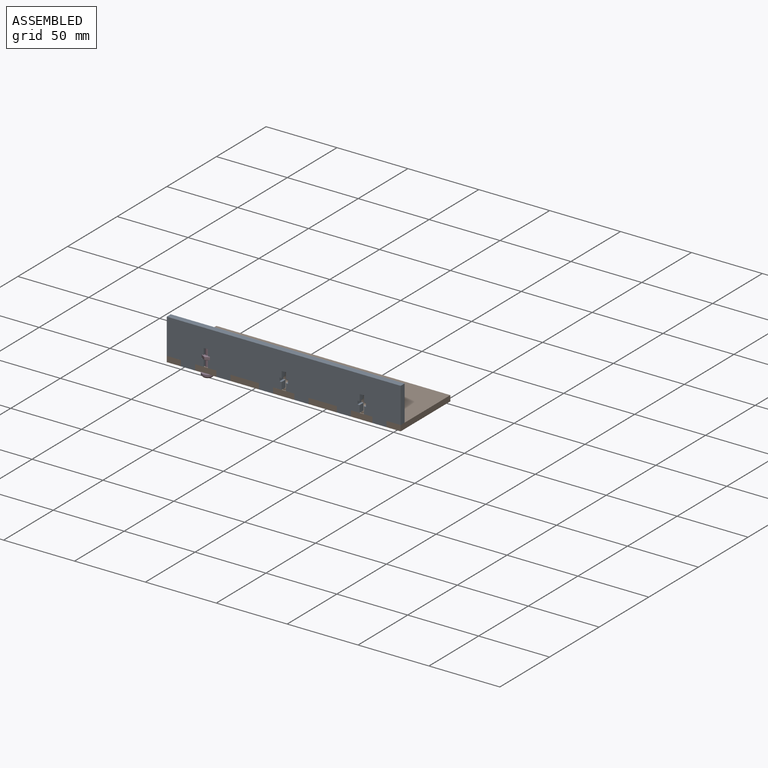
[diagram: assembled view]
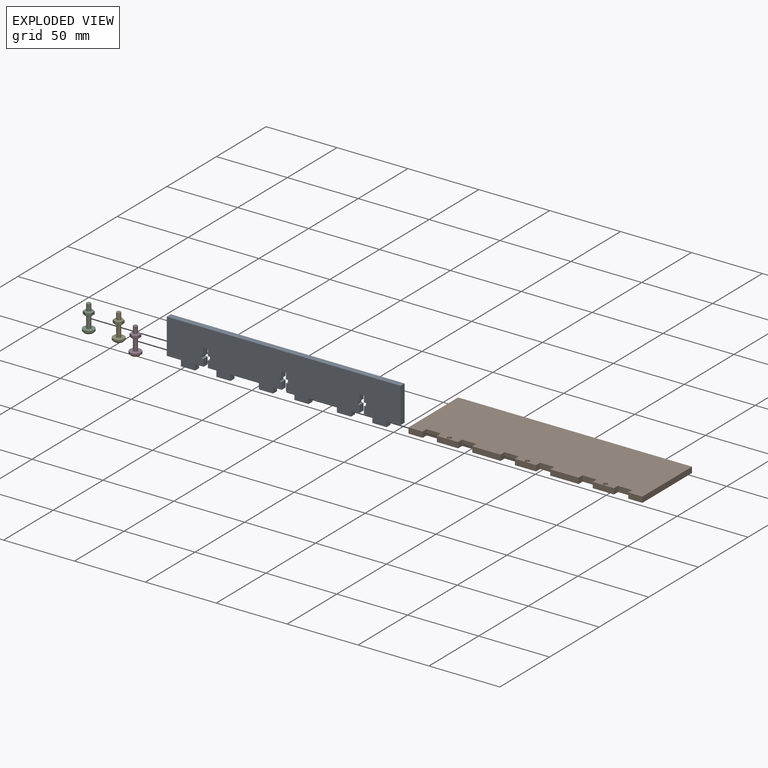
[diagram: exploded view]
GUIDED TOUR — MATED ASSEMBLY (Onshape document 4d6dcd6723f662b2dfa2028a, AutoMate assembly 4d6dcd6723f662b2dfa2028a_2e419da8dc31c41e2eea57a3_882f2dbb3b5270c2fc4bff73_default)

This assembly has 5 components, labeled P0..P4 below (a component is one placed occurrence of a part; the same part can appear more than once), held together by 3 mates. A mate is a constraint between two components; its type names the relative motion it leaves free:
  CYLINDRICAL — leaves both rotation about and translation along the listed axis free,
  FASTENED — locks the two components together rigidly (no relative motion).
Axis/direction vectors are unit vectors and 'through' points are millimeter coordinates, both in the assembly's world frame.

MATES
  1. FASTENED "Fastened 1": P1 <-> P0, direction (-1.000, 0.000, 0.000) through (13.68, -3.23, -2.00) mm
  2. FASTENED "Fastened 2": P3 <-> P0, direction (1.000, 0.000, 0.000) through (24.18, -3.23, 6.25) mm
  3. CYLINDRICAL "Cylindrical 1": P1 <-> P3, axis (0.000, 0.000, -1.000) through (21.18, -3.23, -4.00) mm

ASSEMBLY ORDER
  1. P0 — the base component [order heuristic]
  2. P1 [order heuristic]
  3. P2 [order heuristic]
  4. P3 [order heuristic]
  5. P4 [order heuristic]
Order-tag legend:
  [order heuristic] — this assembly is geometrically interlocked (no collision-free removal order exists), so components are listed in mate-graph order; insertion feasibility is not verified.

Of the 5 components, 3 carry the full construction recipe — the FeatureScript program that regenerates the part's solid from scratch; the rest are supplied as boundary geometry only.
Each toured component is shown spotlighted twice — in the assembled view, then in the exploded view, where a leader line traces a displaced component back to its assembled socket (saturated green if recipe-attached, orange if geometry-only; every other component desaturated gray) — followed by its recipe or geometry summary and the mates that hold it.
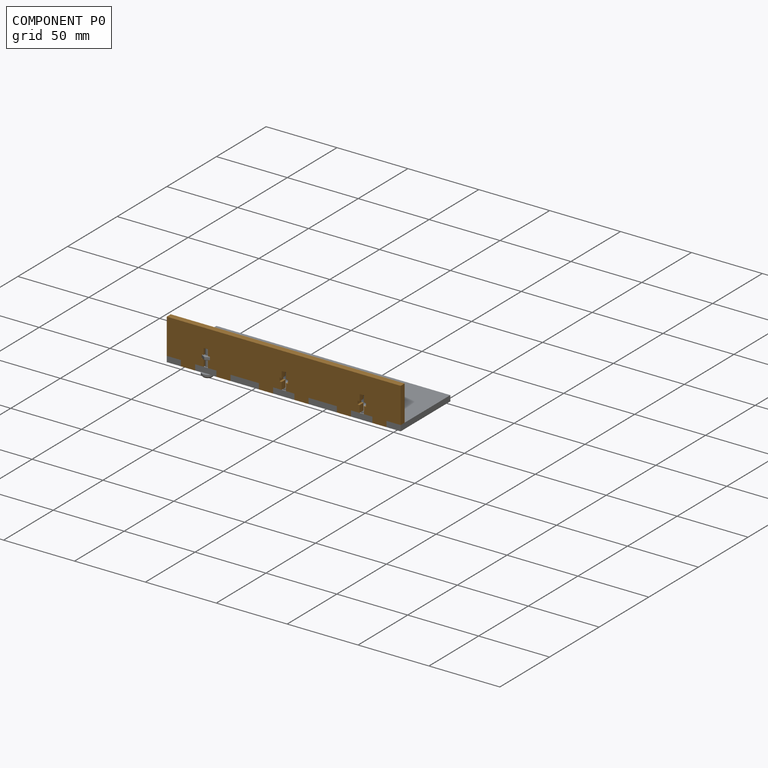
[diagram: component P0 — assembled]
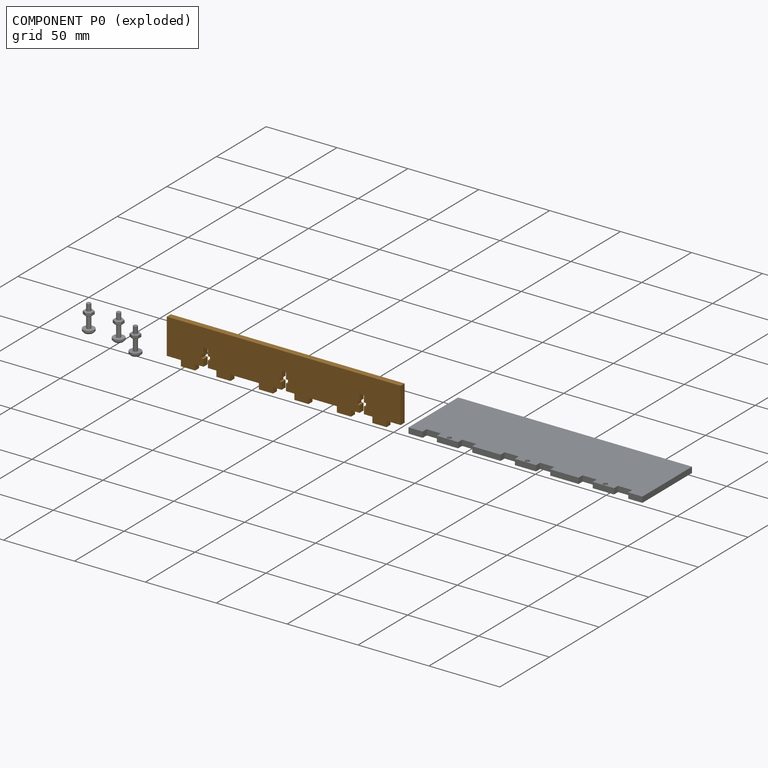
[diagram: component P0 — exploded]
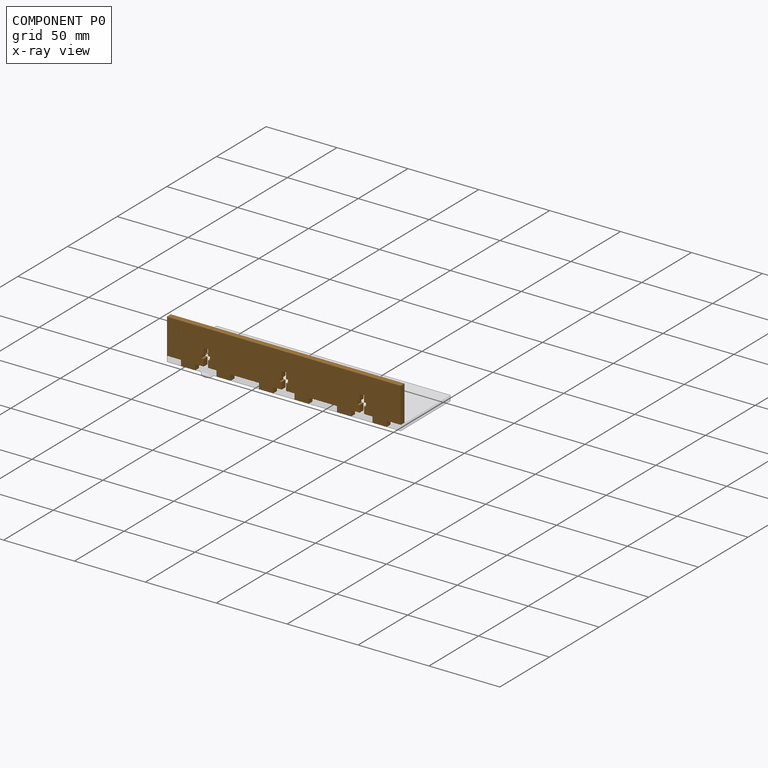
[diagram: component P0 — x-ray view]
COMPONENT P0 — geometry summary (no construction recipe available for this part):
  bounding box: 165.0 x 29.0 x 4.0 mm
  B-rep topology: 1 solid, 70 faces, 408 edges
  volume: 16938 mm^3 (88% of its bounding box)
  symmetry: 2-fold rotationally symmetric about the z axis; mirror-symmetric across its x mid-plane, y mid-plane
Held by: FASTENED mate "Fastened 1" to P1; FASTENED mate "Fastened 2" to P3.
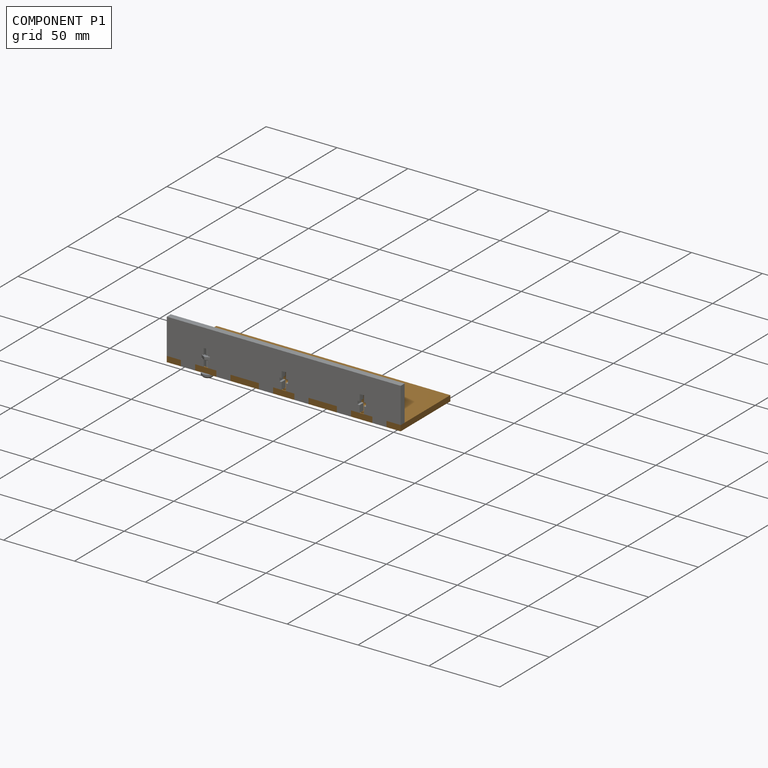
[diagram: component P1 — assembled]
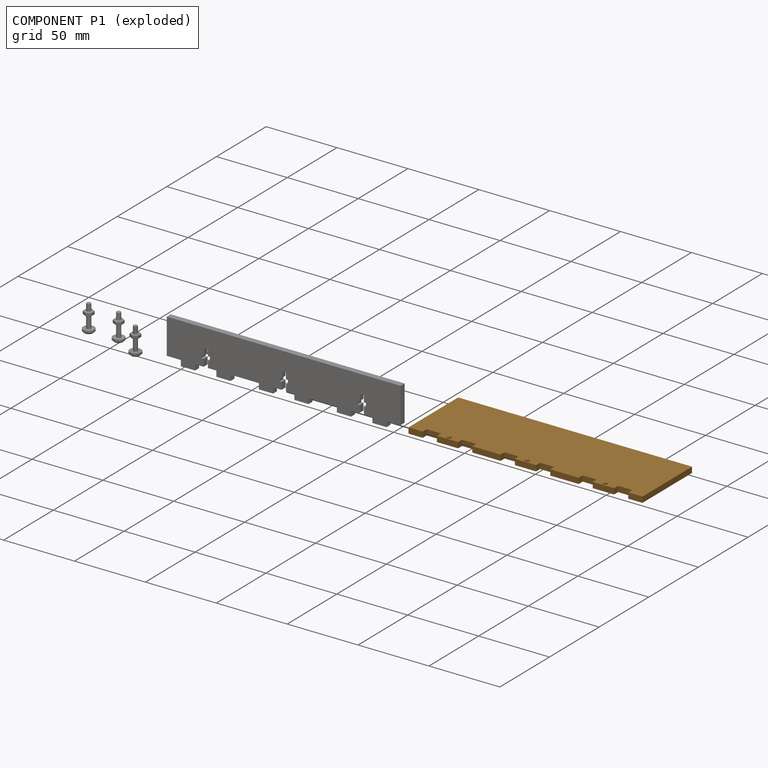
[diagram: component P1 — exploded]
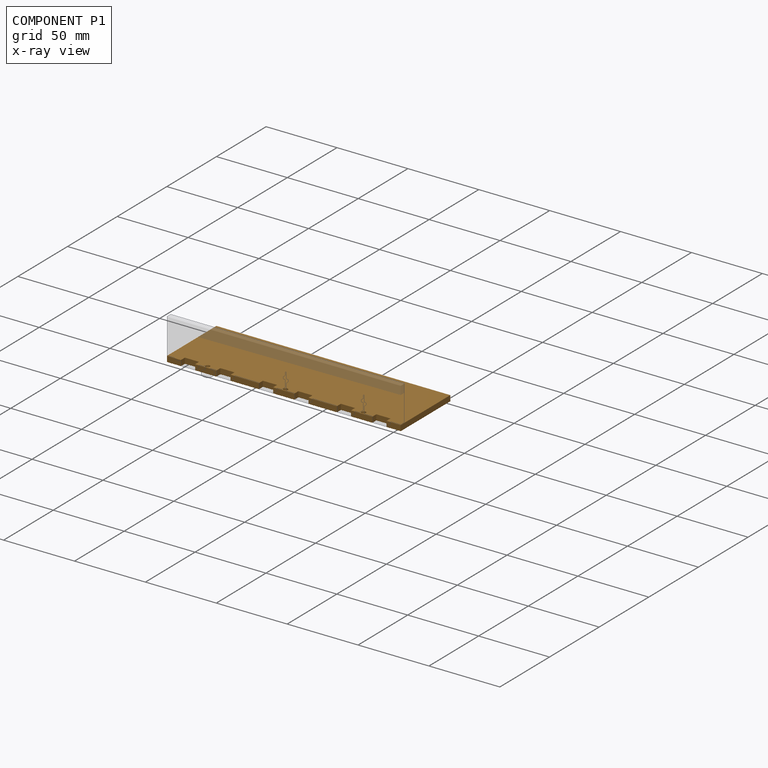
[diagram: component P1 — x-ray view]
COMPONENT P1 — geometry summary (no construction recipe available for this part):
  bounding box: 165.0 x 50.0 x 4.0 mm
  B-rep topology: 1 solid, 33 faces, 186 edges
  volume: 31955 mm^3 (97% of its bounding box)
  symmetry: 2-fold rotationally symmetric about the y axis; mirror-symmetric across its x mid-plane, z mid-plane
Held by: FASTENED mate "Fastened 1" to P0; CYLINDRICAL mate "Cylindrical 1" to P3.
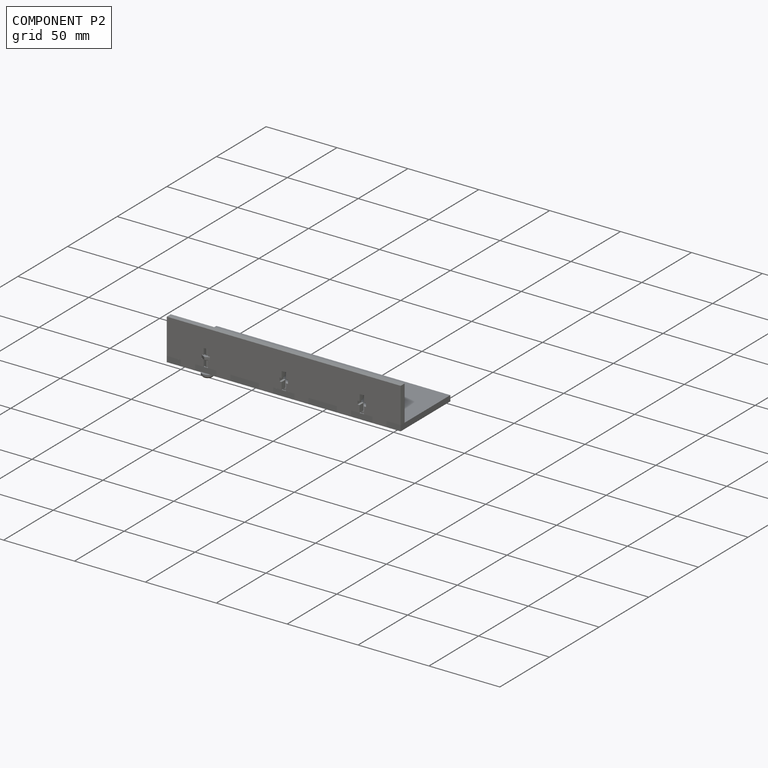
[diagram: component P2 — assembled]
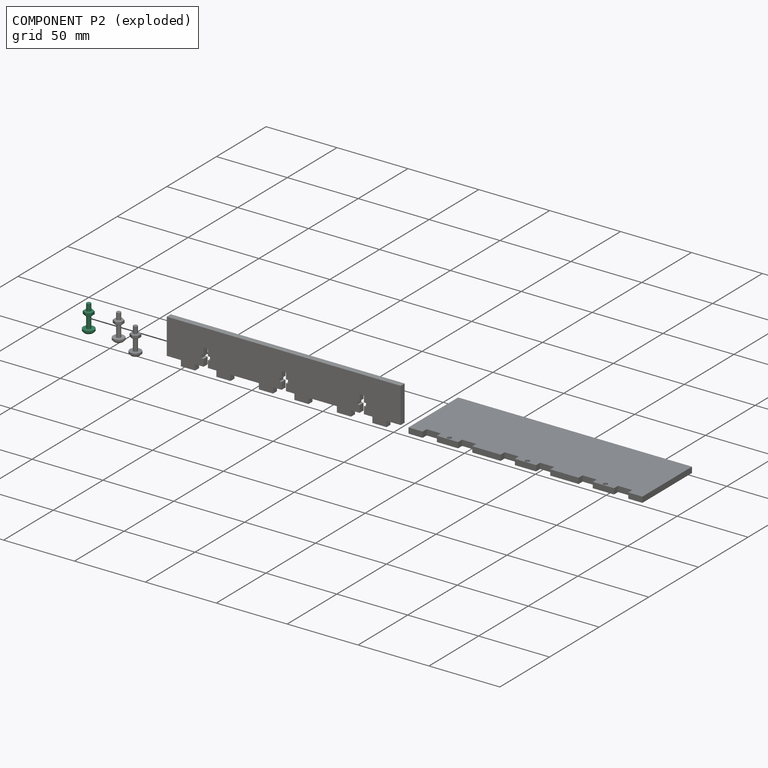
[diagram: component P2 — exploded]
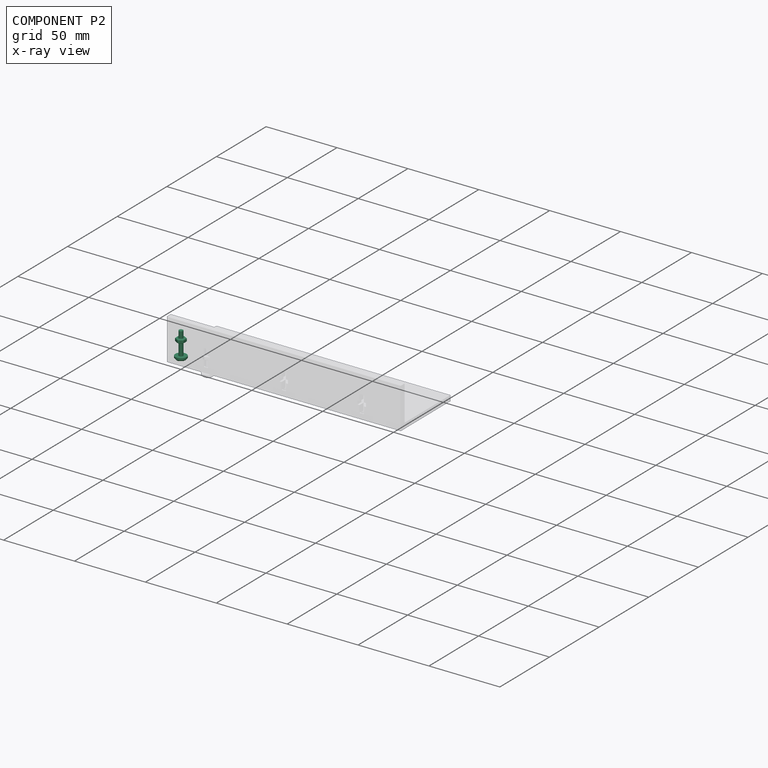
[diagram: component P2 — x-ray view]
COMPONENT P2 — recipe-attached (CADFS 00115429, mesh-verified: the recipe's output STEP matches this component's geometry to below the mesh-comparison resolution (tessellation chordal tolerance ~0.0325 mm)).
Held by: no mates (free).
Construction recipe (FeatureScript — the CAD program that rebuilds this solid; sketch coordinates are in the units given by the * unit suffixes, e.g. mm):

FeatureScript 1511;
import(path : "onshape/std/geometry.fs", version : "1511.0");
import(path : "onshape/std/common.fs", version : "1511.0");
const mm = millimeter;
const VERTEX = EntityType.VERTEX;
const EDGE = EntityType.EDGE;
const FACE = EntityType.FACE;
const BODY = EntityType.BODY;
function v(x, y){return vector(x, y);}
function OD(order){return orderDisambiguation(order);}
function OSD(set){return originalSetDisambiguation(set);}
function TD(topology){return topologyDisambiguation(topology);}
function TDD(query){return trueDependencyDisambiguation(query);}
function sQuery(a, b, c) {return sketchEntityQuery(a, b, c);}

annotation { "Feature Type Name" : "Feature", "Feature Type Description" : "" }
export const myFeature = defineFeature(function(context is Context, id is Id, definition is map)
    precondition{}
    {
        {
            var Q0;
            Q0=qCreatedBy(makeId("Front.planeOp"),FACE);
            var sketch = newSketch(context, id + "F0", { "sketchPlane" : qUnion([Q0])});
            skLineSegment(sketch, "E0", {"start": v(0, 16) * mm, "end": v(1.5, 16) * mm});
            skLineSegment(sketch, "E1", {"start": v(1.5, 16) * mm, "end": v(1.5, 0) * mm});
            skLineSegment(sketch, "E2", {"start": v(1.5, 0) * mm, "end": v(4, 0) * mm});
            skLineSegment(sketch, "E3", {"start": v(4, 0) * mm, "end": v(4, -1.44) * mm});
            skLineSegment(sketch, "E4", {"start": v(4, -1.44) * mm, "end": v(2.94, -2.5) * mm});
            skLineSegment(sketch, "E5", {"start": v(2.94, -2.5) * mm, "end": v(0, -2.5) * mm});
            skLineSegment(sketch, "E6", {"start": v(0, 16) * mm, "end": v(0, -2.5) * mm});
            skSolve(sketch);
        }
        {
            var Q0;
            Q0 = qSketchRegion(id + "F0", true);
            var Q1;
            Q1=sQuery(id+"F0.wireOp",EDGE,"E6");
            revolve(context, id + "F1", {"entities" : qUnion([Q0]), "axis" : qUnion([Q1]), "revolveType" : RevolveType.FULL});
        }
        {
            var Q0;
            Q0=makeQuery(id+"F1.opRevolve","SWEPT_FACE",FACE,{"disambiguationData":[OSD([sQuery(id+"F0.wireOp",EDGE,"E0")])]});
            cPlane(context, id + "F2", {"entities" : qUnion([Q0]), "cplaneType" : CPlaneType.OFFSET, "offset" : 6 * mm, "oppositeDirection" : true, "width" : 150 * mm, "height" : 150 * mm});
        }
        {
            var Q0;
            Q0=qCreatedBy(id+"F2.planeOp",FACE);
            var sketch = newSketch(context, id + "F3", { "sketchPlane" : qUnion([Q0])});
            skCircle(sketch, "E7.cCircle", {"center": v(0, 0) * mm, "radius": 3 * mm, "construction": true});
            skLineSegment(sketch, "E7.0", {"start": v(3, 1.73) * mm, "end": v(3, -1.73) * mm});
            skLineSegment(sketch, "E7.1", {"start": v(3, -1.73) * mm, "end": v(0, -3.46) * mm});
            skLineSegment(sketch, "E7.2", {"start": v(0, -3.46) * mm, "end": v(-3, -1.73) * mm});
            skLineSegment(sketch, "E7.3", {"start": v(-3, -1.73) * mm, "end": v(-3, 1.73) * mm});
            skLineSegment(sketch, "E7.4", {"start": v(-3, 1.73) * mm, "end": v(0, 3.46) * mm});
            skLineSegment(sketch, "E7.5", {"start": v(0, 3.46) * mm, "end": v(3, 1.73) * mm});
            skPoint(sketch, "E7.0.midPoint", {"position": v(3, 0) * mm});
            skSolve(sketch);
        }
        {
            var Q0;
            Q0 = qSketchRegion(id + "F3", true);
            extrude(context, id + "F4", {"entities" : qUnion([Q0]), "operationType" : NewBodyOperationType.ADD, "endBound" : BoundingType.SYMMETRIC, "depth" : 2.5 * mm});
        }
        {
            var Q0;
            Q0=makeQuery(id+"F4.opExtrude","CAP_EDGE",EDGE,{"disambiguationData":[OSD([sQuery(id+"F3.wireOp",EDGE,"E7.1")])],"isStart":false});
            var Q1;
            Q1=makeQuery(id+"F4.opExtrude","CAP_EDGE",EDGE,{"disambiguationData":[OSD([sQuery(id+"F3.wireOp",EDGE,"E7.0")])],"isStart":false});
            var Q2;
            Q2=makeQuery(id+"F4.opExtrude","CAP_EDGE",EDGE,{"disambiguationData":[OSD([sQuery(id+"F3.wireOp",EDGE,"E7.5")])],"isStart":false});
            var Q3;
            Q3=makeQuery(id+"F4.opExtrude","CAP_EDGE",EDGE,{"disambiguationData":[OSD([sQuery(id+"F3.wireOp",EDGE,"E7.2")])],"isStart":false});
            var Q4;
            Q4=makeQuery(id+"F4.opExtrude","CAP_EDGE",EDGE,{"disambiguationData":[OSD([sQuery(id+"F3.wireOp",EDGE,"E7.3")])],"isStart":false});
            var Q5;
            Q5=makeQuery(id+"F4.opExtrude","CAP_EDGE",EDGE,{"disambiguationData":[OSD([sQuery(id+"F3.wireOp",EDGE,"E7.4")])],"isStart":false});
            var Q6;
            Q6=makeQuery(id+"F4.opExtrude","CAP_EDGE",EDGE,{"disambiguationData":[OSD([sQuery(id+"F3.wireOp",EDGE,"E7.2")])],"isStart":true});
            var Q7;
            Q7=makeQuery(id+"F4.opExtrude","CAP_EDGE",EDGE,{"disambiguationData":[OSD([sQuery(id+"F3.wireOp",EDGE,"E7.1")])],"isStart":true});
            var Q8;
            Q8=makeQuery(id+"F4.opExtrude","CAP_EDGE",EDGE,{"disambiguationData":[OSD([sQuery(id+"F3.wireOp",EDGE,"E7.0")])],"isStart":true});
            var Q9;
            Q9=makeQuery(id+"F4.opExtrude","CAP_EDGE",EDGE,{"disambiguationData":[OSD([sQuery(id+"F3.wireOp",EDGE,"E7.3")])],"isStart":true});
            var Q10;
            Q10=makeQuery(id+"F4.opExtrude","CAP_EDGE",EDGE,{"disambiguationData":[OSD([sQuery(id+"F3.wireOp",EDGE,"E7.4")])],"isStart":true});
            var Q11;
            Q11=makeQuery(id+"F4.opExtrude","CAP_EDGE",EDGE,{"disambiguationData":[OSD([sQuery(id+"F3.wireOp",EDGE,"E7.5")])],"isStart":true});
            fillet(context, id + "F5", {"entities" : qUnion([Q0, Q1, Q2, Q3, Q4, Q5, Q6, Q7, Q8, Q9, Q10, Q11]), "radius" : 0.5 * mm, "tangentPropagation" : true, "allowEdgeOverflow" : false});
        }
    });
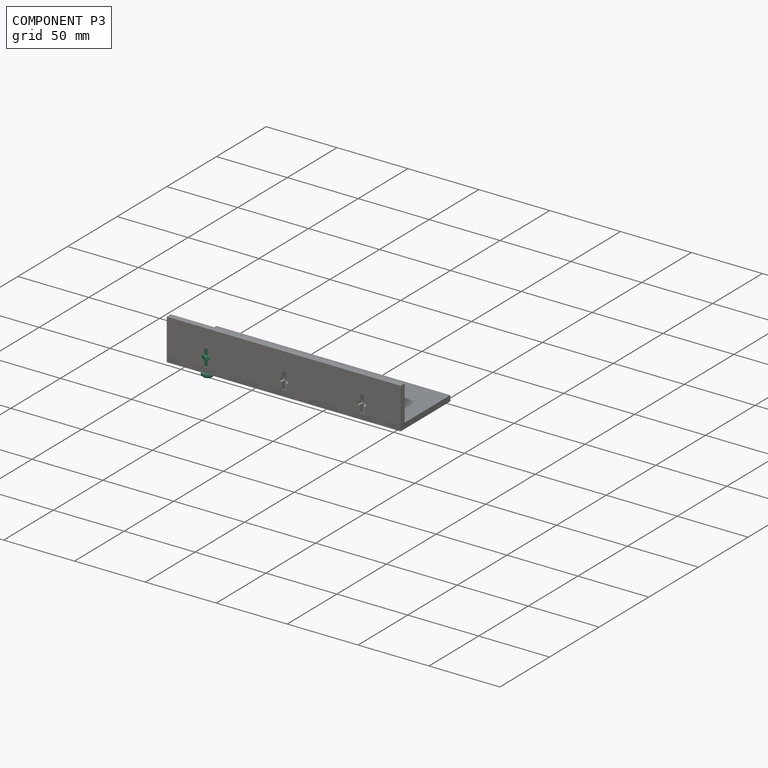
[diagram: component P3 — assembled]
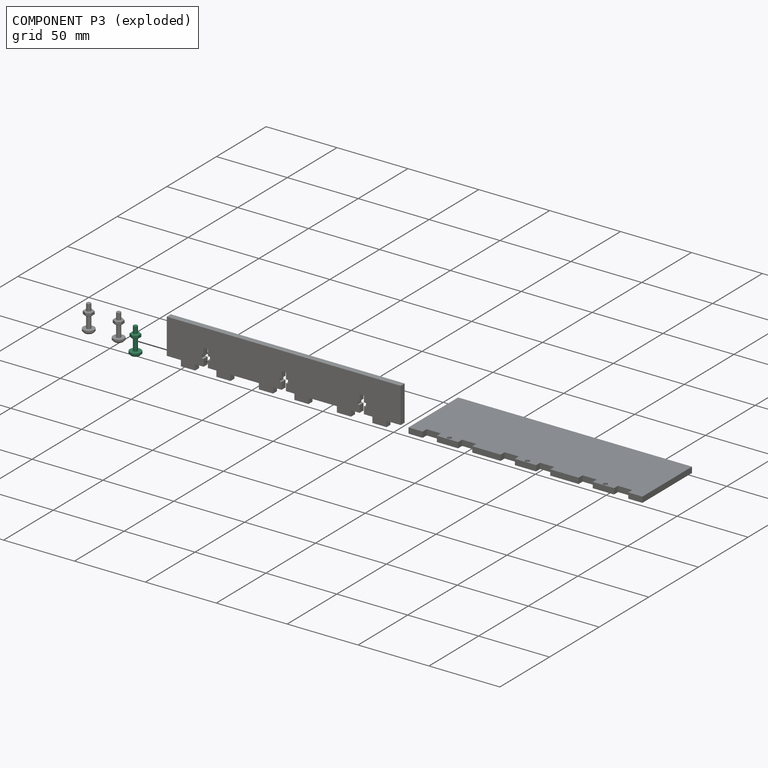
[diagram: component P3 — exploded]
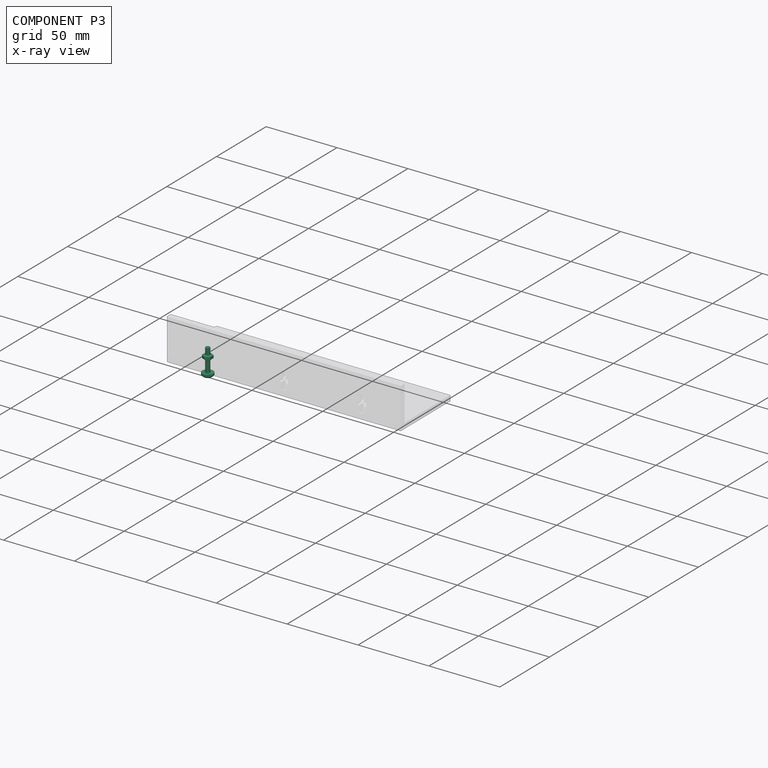
[diagram: component P3 — x-ray view]
COMPONENT P3 — same part as P2 (CADFS 00115429); its construction recipe is shown at P2.
Held by: FASTENED mate "Fastened 2" to P0; CYLINDRICAL mate "Cylindrical 1" to P1.
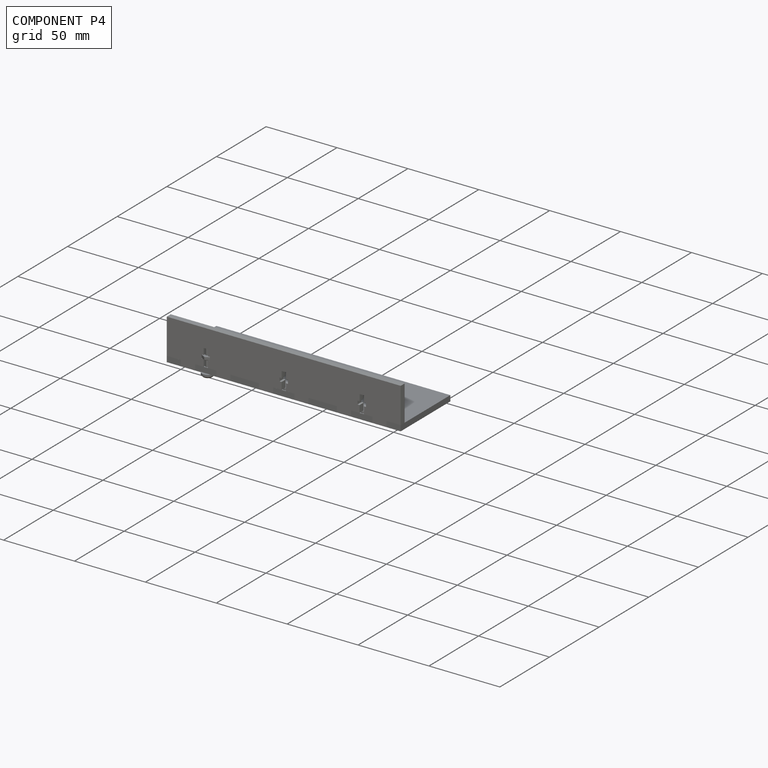
[diagram: component P4 — assembled]
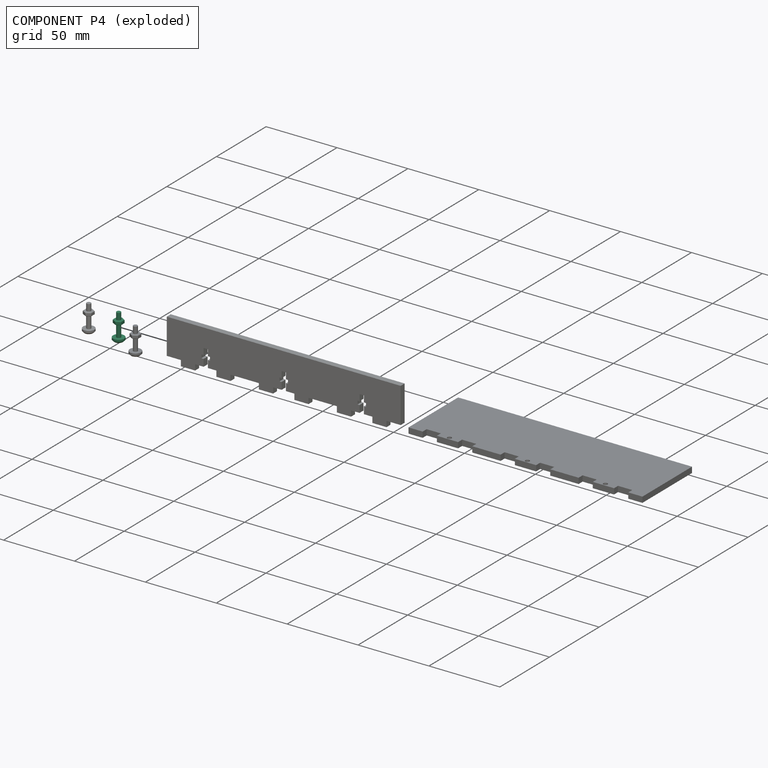
[diagram: component P4 — exploded]
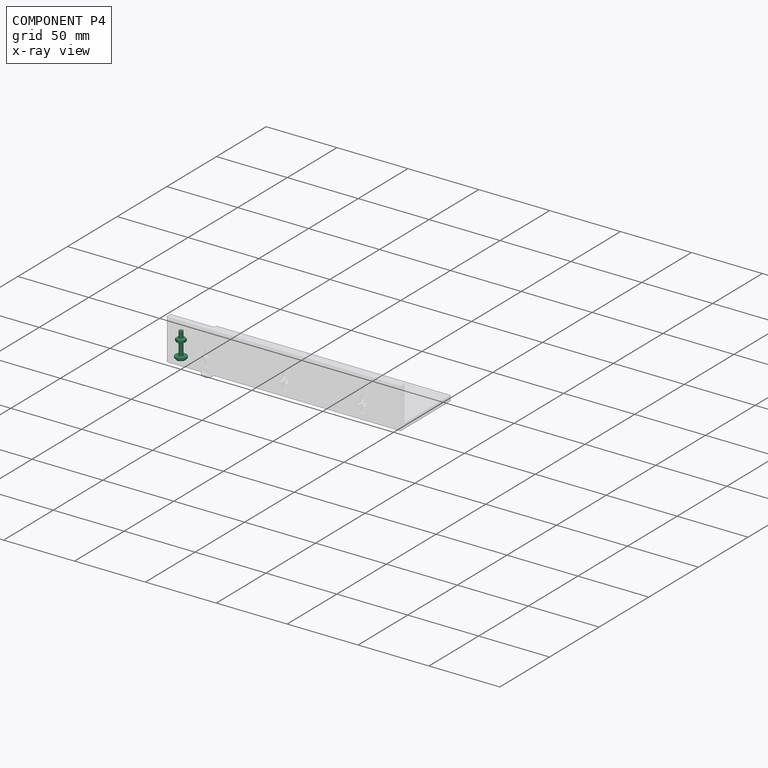
[diagram: component P4 — x-ray view]
COMPONENT P4 — same part as P2 (CADFS 00115429); its construction recipe is shown at P2.
Held by: no mates (free).
PROVENANCE & LICENSES
Assembly (occurrences, transforms, mates, per-part STEP geometry): AutoMate dataset, Zenodo record 7776208, CC0.
Construction recipes: CADFS (HuggingFace VladPyatov/CADFS, CC-BY-4.0, layered over the ABC dataset), FeatureScript reconstruction programs keyed by ABC model id.
Join: ABC meta listings map ABC model id -> Onshape documentId; within a shared document, parts are matched by geometric signature (bounding-box dims + volume at 0.1% relative tolerance, exact B-rep face/solid counts).
Verification: 3 of this assembly's 5 components carry a recipe attachment, and every attachment is mesh-verified: the CADFS STEP and the AutoMate member STEP were compared as meshes in their shared local frame (symmetric sampled-point-to-mesh distance); worst across the 3 attachments: below the mesh-comparison resolution (tessellation chordal tolerance ~0.0325 mm) on a 22 mm part.
Renders: orthographic iso camera (az 35 / el 25); the floor grid conveys scale (grid pitch printed in each image; no ruler). In the exploded view each component is displaced by its stored offset vector: the offsets alone carry the explosion direction (mate normal/axis signs are not orientation cues and do not encode it), and separation distances are assigned per mate-chain, not proportionally to assembly-order depth.
